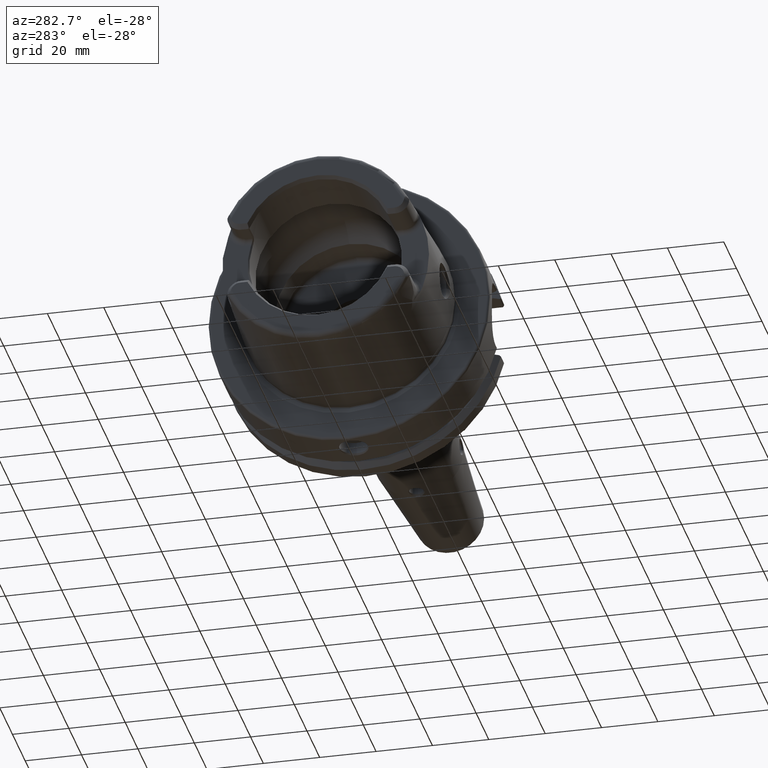
[diagram: clean part render]
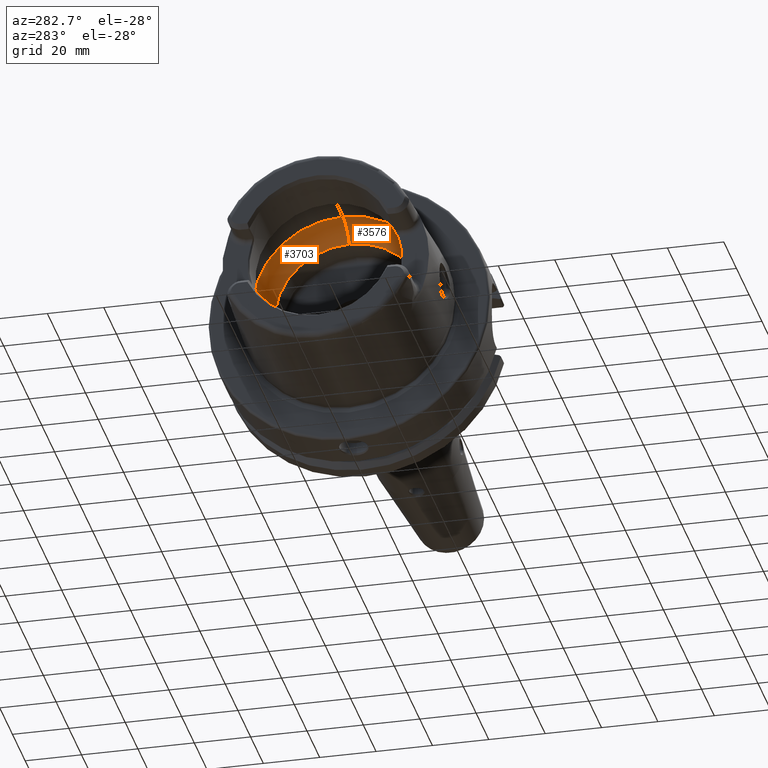
[diagram: same view with one multi-face feature highlighted, each face labeled with its STEP entity id]
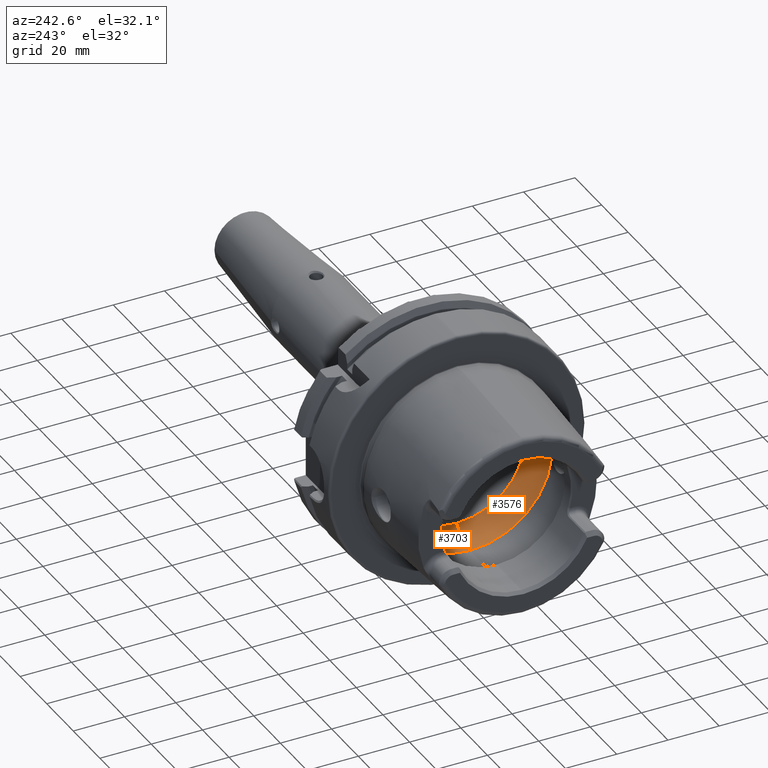
[diagram: same view with one multi-face feature highlighted, each face labeled with its STEP entity id]
A machine part, auxiliary view. The highlighted faces form ONE feature: a constant-radius fillet chain: 2 tangent blend faces with common blend radius 12 mm. The faces share edges in the B-rep.
A second angle (auxiliary view) of the same feature is appended — it is thin or edge-on in the first view.
Their STEP definitions:
[1] entity #3703 (Torus):
#227=CARTESIAN_POINT('',(3.259811553909E-1,0.E0,0.E0));
#228=DIRECTION('',(1.E0,0.E0,0.E0));
#229=DIRECTION('',(0.E0,0.E0,-1.E0));
#230=AXIS2_PLACEMENT_3D('',#227,#228,#229);
#366=CARTESIAN_POINT('',(-9.7468E0,0.E0,-1.9977801E1));
#367=DIRECTION('',(0.E0,1.E0,0.E0));
#368=DIRECTION('',(8.393984296159E-1,0.E0,-5.435165833333E-1));
#369=AXIS2_PLACEMENT_3D('',#366,#367,#368);
#371=CARTESIAN_POINT('',(-9.7468E0,0.E0,1.9977801E1));
#372=DIRECTION('',(0.E0,-1.E0,0.E0));
#373=DIRECTION('',(8.393984296159E-1,0.E0,5.435165833333E-1));
#374=AXIS2_PLACEMENT_3D('',#371,#372,#373);
#427=CARTESIAN_POINT('',(-9.7468E0,3.184612797556E1,-2.898946318923E0));
#444=CARTESIAN_POINT('',(-9.7468E0,0.E0,0.E0));
#445=DIRECTION('',(1.E0,0.E0,0.E0));
#446=DIRECTION('',(0.E0,0.E0,-1.E0));
#447=AXIS2_PLACEMENT_3D('',#444,#445,#446);
#449=CARTESIAN_POINT('',(-9.7468E0,0.E0,0.E0));
#450=DIRECTION('',(1.E0,0.E0,0.E0));
#451=DIRECTION('',(0.E0,9.958823615031E-1,9.065496151294E-2));
#452=AXIS2_PLACEMENT_3D('',#449,#450,#451);
#469=CARTESIAN_POINT('',(-9.7468E0,3.184612797556E1,2.898946318923E0));
#471=CARTESIAN_POINT('',(-9.E0,3.195454052960E1,0.E0));
#472=CARTESIAN_POINT('',(-9.E0,3.195454052960E1,-3.381119242272E-1));
#473=CARTESIAN_POINT('',(-9.057330735008E0,3.194747841027E1,-1.013009017261E0));
#474=CARTESIAN_POINT('',(-9.310459572189E0,3.191400600196E1,-1.992066362112E0));
#475=CARTESIAN_POINT('',(-9.585175880117E0,3.187278879370E1,-2.606066171047E0));
#476=CARTESIAN_POINT('',(-9.7468E0,3.184612797556E1,-2.898946318923E0));
#478=CARTESIAN_POINT('',(-9.7468E0,3.184612797556E1,2.898946318923E0));
#479=CARTESIAN_POINT('',(-9.585127357174E0,3.187279679784E1,2.605978242298E0));
#480=CARTESIAN_POINT('',(-9.310379938408E0,3.191401708557E1,1.991845080032E0));
#481=CARTESIAN_POINT('',(-9.057312584844E0,3.194748055750E1,1.012859366110E0));
#482=CARTESIAN_POINT('',(-9.E0,3.195454052960E1,3.380482648300E-1));
#483=CARTESIAN_POINT('',(-9.E0,3.195454052960E1,0.E0));
#2813=CARTESIAN_POINT('',(3.259811553909E-1,0.E0,-2.65E1));
#2814=CARTESIAN_POINT('',(3.259811553909E-1,0.E0,2.65E1));
#2815=VERTEX_POINT('',#2813);
#2816=VERTEX_POINT('',#2814);
#2817=CARTESIAN_POINT('',(-9.7468E0,0.E0,-3.1977801E1));
#2818=VERTEX_POINT('',#2817);
#2819=CARTESIAN_POINT('',(-9.7468E0,0.E0,3.1977801E1));
#2820=VERTEX_POINT('',#2819);
#3098=VERTEX_POINT('',#427);
#3100=VERTEX_POINT('',#469);
#3104=VERTEX_POINT('',#471);
#3689=CARTESIAN_POINT('',(-9.7468E0,0.E0,0.E0));
#3690=DIRECTION('',(1.E0,0.E0,0.E0));
#3691=DIRECTION('',(0.E0,0.E0,1.E0));
#3692=AXIS2_PLACEMENT_3D('',#3689,#3690,#3691);
#3693=TOROIDAL_SURFACE('',#3692,1.9977801E1,1.2E1);
#3694=ORIENTED_EDGE('',*,*,#3586,.F.);
#3695=ORIENTED_EDGE('',*,*,#3648,.F.);
#3696=ORIENTED_EDGE('',*,*,#3683,.T.);
#3697=ORIENTED_EDGE('',*,*,#3568,.F.);
#3698=ORIENTED_EDGE('',*,*,#3480,.F.);
#3699=ORIENTED_EDGE('',*,*,#3565,.T.);
#3700=ORIENTED_EDGE('',*,*,#3675,.T.);
#3701=EDGE_LOOP('',(#3694,#3695,#3696,#3697,#3698,#3699,#3700));
#3702=FACE_OUTER_BOUND('',#3701,.F.);
#3703=ADVANCED_FACE('',(#3702),#3693,.F.);
#231=CIRCLE('',#230,2.65E1);
#370=CIRCLE('',#369,1.2E1);
#375=CIRCLE('',#374,1.2E1);
#448=CIRCLE('',#447,3.1977801E1);
#453=CIRCLE('',#452,3.1977801E1);
#477=B_SPLINE_CURVE_WITH_KNOTS('',3,(#471,#472,#473,#474,#475,#476),
.UNSPECIFIED.,.F.,.F.,(4,1,1,4),(0.E0,3.333333333333E-1,6.666666666667E-1,1.E0),
.UNSPECIFIED.);
#484=B_SPLINE_CURVE_WITH_KNOTS('',3,(#478,#479,#480,#481,#482,#483),
.UNSPECIFIED.,.F.,.F.,(4,1,1,4),(0.E0,3.333333333333E-1,6.666666666667E-1,1.E0),
.UNSPECIFIED.);
#3480=EDGE_CURVE('',#2815,#2816,#231,.T.);
#3565=EDGE_CURVE('',#2815,#2818,#370,.T.);
#3568=EDGE_CURVE('',#2816,#2820,#375,.T.);
#3586=EDGE_CURVE('',#3104,#3098,#477,.T.);
#3648=EDGE_CURVE('',#3100,#3104,#484,.T.);
#3675=EDGE_CURVE('',#2818,#3098,#448,.T.);
#3683=EDGE_CURVE('',#3100,#2820,#453,.T.);
[2] entity #3576 (Torus):
#289=CARTESIAN_POINT('',(3.259811553909E-1,0.E0,0.E0));
#290=DIRECTION('',(1.E0,0.E0,0.E0));
#291=DIRECTION('',(0.E0,0.E0,1.E0));
#292=AXIS2_PLACEMENT_3D('',#289,#290,#291);
#359=CARTESIAN_POINT('',(-9.7468E0,-3.184612797556E1,-2.898946318923E0));
#360=CARTESIAN_POINT('',(-9.585175880117E0,-3.187278879370E1,
-2.606066171047E0));
#361=CARTESIAN_POINT('',(-9.310459572189E0,-3.191400600196E1,
-1.992066362112E0));
#362=CARTESIAN_POINT('',(-9.057330735008E0,-3.194747841027E1,
-1.013009017261E0));
#363=CARTESIAN_POINT('',(-9.E0,-3.195454052960E1,-3.381119242272E-1));
#364=CARTESIAN_POINT('',(-9.E0,-3.195454052960E1,0.E0));
#366=CARTESIAN_POINT('',(-9.7468E0,0.E0,-1.9977801E1));
#367=DIRECTION('',(0.E0,1.E0,0.E0));
#368=DIRECTION('',(8.393984296159E-1,0.E0,-5.435165833333E-1));
#369=AXIS2_PLACEMENT_3D('',#366,#367,#368);
#371=CARTESIAN_POINT('',(-9.7468E0,0.E0,1.9977801E1));
#372=DIRECTION('',(0.E0,-1.E0,0.E0));
#373=DIRECTION('',(8.393984296159E-1,0.E0,5.435165833333E-1));
#374=AXIS2_PLACEMENT_3D('',#371,#372,#373);
#376=CARTESIAN_POINT('',(-9.E0,-3.195454052960E1,0.E0));
#377=CARTESIAN_POINT('',(-9.E0,-3.195454052960E1,3.380482648301E-1));
#378=CARTESIAN_POINT('',(-9.057312584844E0,-3.194748055750E1,1.012859366110E0));
#379=CARTESIAN_POINT('',(-9.310379938408E0,-3.191401708557E1,1.991845080032E0));
#380=CARTESIAN_POINT('',(-9.585127357174E0,-3.187279679784E1,2.605978242298E0));
#381=CARTESIAN_POINT('',(-9.7468E0,-3.184612797556E1,2.898946318923E0));
#500=CARTESIAN_POINT('',(-9.7468E0,-3.184612797556E1,-2.898946318923E0));
#502=CARTESIAN_POINT('',(-9.7468E0,-3.184612797556E1,2.898946318923E0));
#519=CARTESIAN_POINT('',(-9.7468E0,0.E0,0.E0));
#520=DIRECTION('',(1.E0,0.E0,0.E0));
#521=DIRECTION('',(0.E0,0.E0,1.E0));
#522=AXIS2_PLACEMENT_3D('',#519,#520,#521);
#532=CARTESIAN_POINT('',(-9.7468E0,0.E0,0.E0));
#533=DIRECTION('',(1.E0,0.E0,0.E0));
#534=DIRECTION('',(0.E0,-9.958823615031E-1,-9.065496151294E-2));
#535=AXIS2_PLACEMENT_3D('',#532,#533,#534);
#2813=CARTESIAN_POINT('',(3.259811553909E-1,0.E0,-2.65E1));
#2814=CARTESIAN_POINT('',(3.259811553909E-1,0.E0,2.65E1));
#2815=VERTEX_POINT('',#2813);
#2816=VERTEX_POINT('',#2814);
#2817=CARTESIAN_POINT('',(-9.7468E0,0.E0,-3.1977801E1));
#2818=VERTEX_POINT('',#2817);
#2819=CARTESIAN_POINT('',(-9.7468E0,0.E0,3.1977801E1));
#2820=VERTEX_POINT('',#2819);
#3102=VERTEX_POINT('',#500);
#3103=VERTEX_POINT('',#502);
#3105=VERTEX_POINT('',#364);
#3556=CARTESIAN_POINT('',(-9.7468E0,0.E0,0.E0));
#3557=DIRECTION('',(1.E0,0.E0,0.E0));
#3558=DIRECTION('',(0.E0,0.E0,1.E0));
#3559=AXIS2_PLACEMENT_3D('',#3556,#3557,#3558);
#3560=TOROIDAL_SURFACE('',#3559,1.9977801E1,1.2E1);
#3562=ORIENTED_EDGE('',*,*,#3561,.F.);
#3564=ORIENTED_EDGE('',*,*,#3563,.T.);
#3566=ORIENTED_EDGE('',*,*,#3565,.F.);
#3567=ORIENTED_EDGE('',*,*,#3522,.F.);
#3569=ORIENTED_EDGE('',*,*,#3568,.T.);
#3571=ORIENTED_EDGE('',*,*,#3570,.T.);
#3573=ORIENTED_EDGE('',*,*,#3572,.F.);
#3574=EDGE_LOOP('',(#3562,#3564,#3566,#3567,#3569,#3571,#3573));
#3575=FACE_OUTER_BOUND('',#3574,.F.);
#3576=ADVANCED_FACE('',(#3575),#3560,.F.);
#293=CIRCLE('',#292,2.65E1);
#365=B_SPLINE_CURVE_WITH_KNOTS('',3,(#359,#360,#361,#362,#363,#364),
.UNSPECIFIED.,.F.,.F.,(4,1,1,4),(0.E0,3.333333333333E-1,6.666666666667E-1,1.E0),
.UNSPECIFIED.);
#370=CIRCLE('',#369,1.2E1);
#375=CIRCLE('',#374,1.2E1);
#382=B_SPLINE_CURVE_WITH_KNOTS('',3,(#376,#377,#378,#379,#380,#381),
.UNSPECIFIED.,.F.,.F.,(4,1,1,4),(0.E0,3.333333333333E-1,6.666666666667E-1,1.E0),
.UNSPECIFIED.);
#523=CIRCLE('',#522,3.1977801E1);
#536=CIRCLE('',#535,3.1977801E1);
#3522=EDGE_CURVE('',#2816,#2815,#293,.T.);
#3561=EDGE_CURVE('',#3102,#3105,#365,.T.);
#3563=EDGE_CURVE('',#3102,#2818,#536,.T.);
#3565=EDGE_CURVE('',#2815,#2818,#370,.T.);
#3568=EDGE_CURVE('',#2816,#2820,#375,.T.);
#3570=EDGE_CURVE('',#2820,#3103,#523,.T.);
#3572=EDGE_CURVE('',#3105,#3103,#382,.T.);